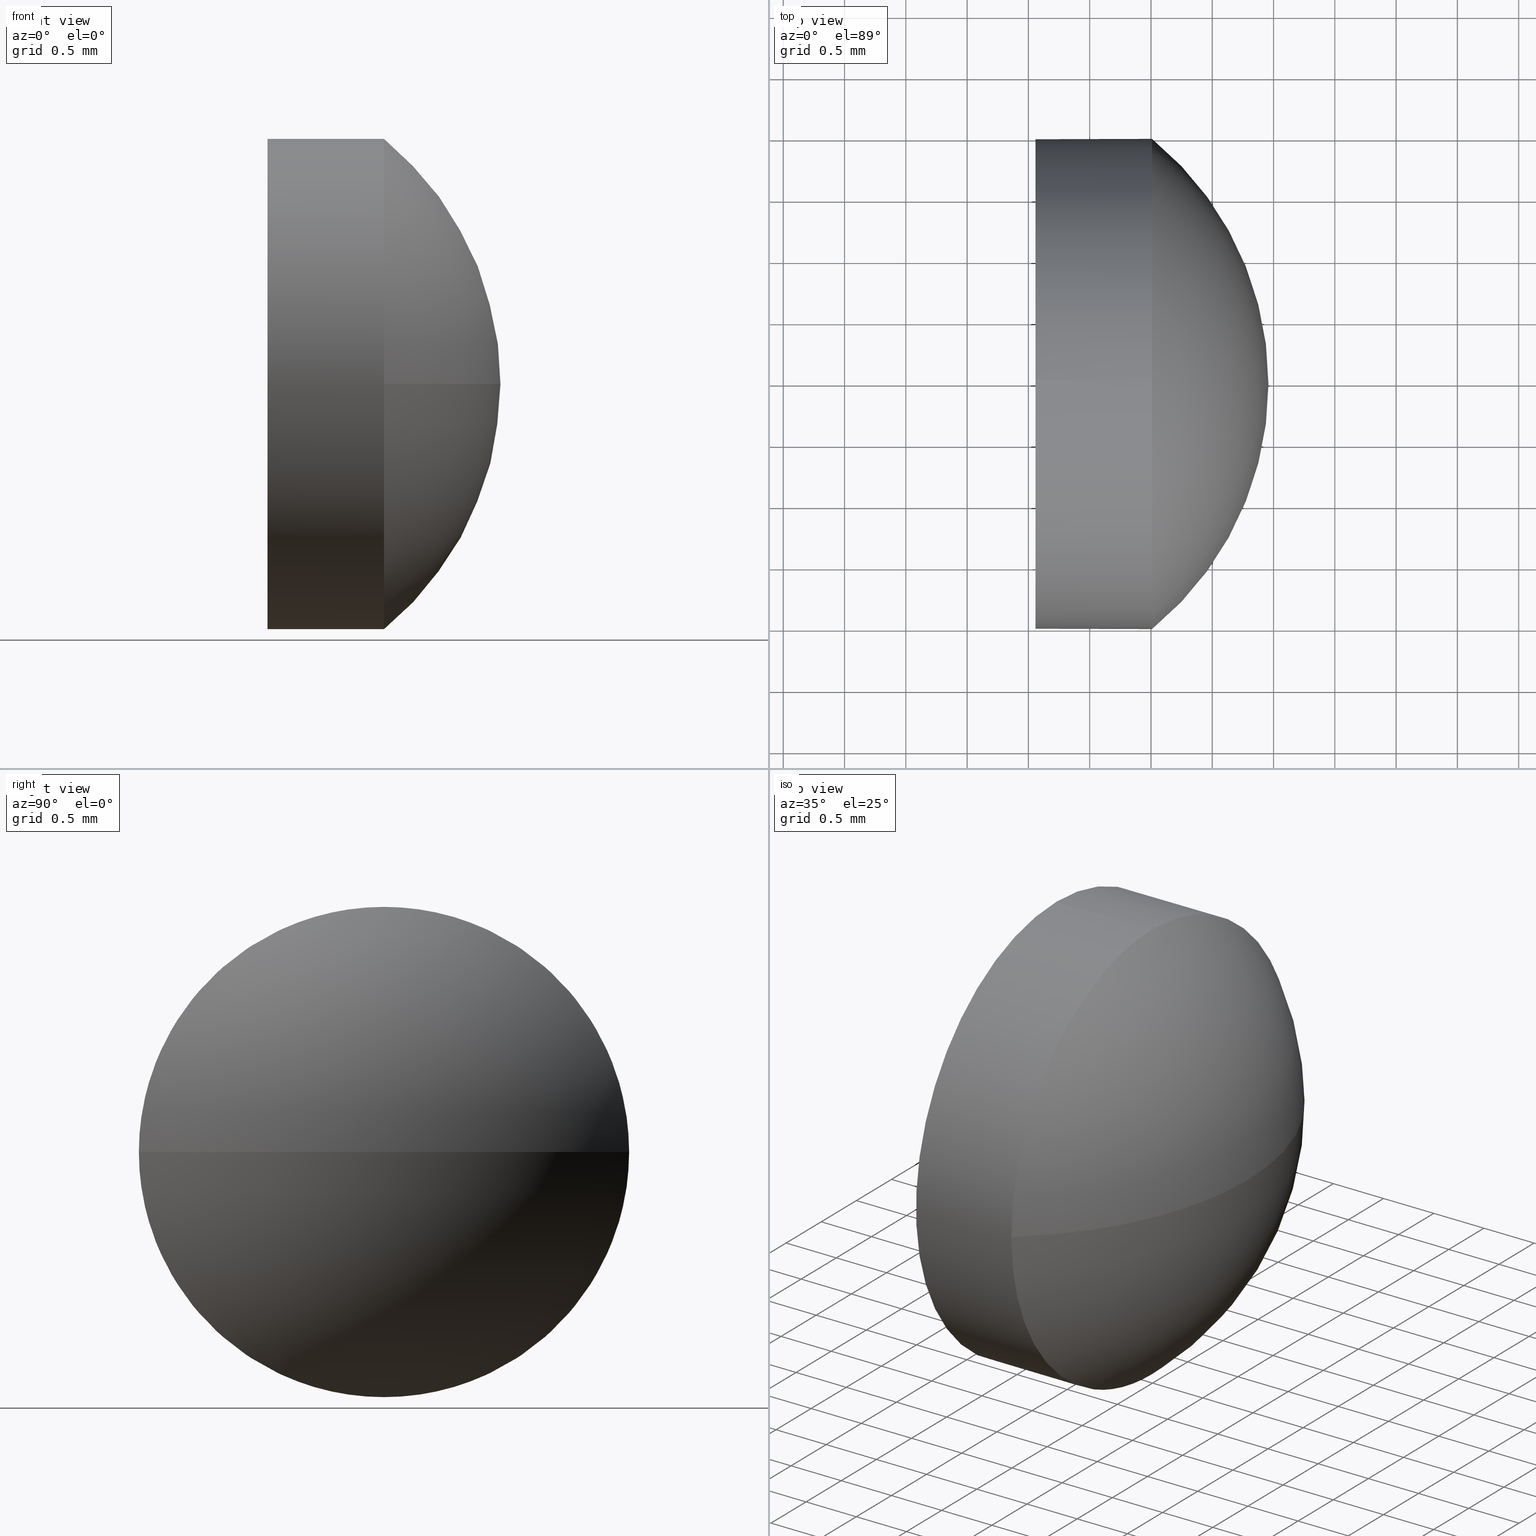
[diagram: canonical four-view strip — front | top / right | iso, engineering-drawing reading convention]
A machine part, canonical four-view strip (front | top / right | iso — engineering-drawing reading convention). The complete STEP part file that produces these views, byte-faithful:
ISO-10303-21;
HEADER;
FILE_DESCRIPTION (( 'STEP AP214' ),
    '1' );
FILE_NAME ('100002.STEP',
    '2019-04-18T09:23:28',
    ( '' ),
    ( '' ),
    'SwSTEP 2.0',
    'SolidWorks 2016',
    '' );
FILE_SCHEMA (( 'AUTOMOTIVE_DESIGN' ));
ENDSEC;

DATA;
#1 = FACE_OUTER_BOUND ( 'NONE', #55, .T. ) ;
#2 = ORIENTED_EDGE ( 'NONE', *, *, #9, .F. ) ;
#3 = AXIS2_PLACEMENT_3D ( 'NONE', #100, #83, #138 ) ;
#4 = CARTESIAN_POINT ( 'NONE',  ( 423.4283672634038600, 105.4806161096724700, -2.000000000000008900 ) ) ;
#5 = CARTESIAN_POINT ( 'NONE',  ( 423.4283672634038600, 105.4806161096724700, 2.000000000000008900 ) ) ;
#6 = DIRECTION ( 'NONE',  ( -1.000000000000000000, -0.0000000000000000000, -0.0000000000000000000 ) ) ;
#7 = CIRCLE ( 'NONE', #147, 2.000000000000015500 ) ;
#8 = CARTESIAN_POINT ( 'NONE',  ( 423.4283672634038600, 105.4806161096724700, 0.0000000000000000000 ) ) ;
#9 = EDGE_CURVE ( 'NONE', #130, #85, #41, .T. ) ;
#10 = MANIFOLD_SOLID_BREP ( '��ת3', #111 ) ;
#11 = DIRECTION ( 'NONE',  ( 1.000000000000000000, 0.0000000000000000000, 0.0000000000000000000 ) ) ;
#12 = AXIS2_PLACEMENT_3D ( 'NONE', #118, #6, #134 ) ;
#13 = ORIENTED_EDGE ( 'NONE', *, *, #49, .T. ) ;
#14 = FACE_OUTER_BOUND ( 'NONE', #148, .T. ) ;
#15 = ADVANCED_FACE ( 'NONE', ( #117 ), #126, .F. ) ;
#16 = APPLICATION_PROTOCOL_DEFINITION ( 'draft international standard', 'automotive_design', 1998, #31 ) ;
#17 = ORIENTED_EDGE ( 'NONE', *, *, #183, .T. ) ;
#18 = MECHANICAL_DESIGN_GEOMETRIC_PRESENTATION_REPRESENTATION (  '', ( #112 ), #127 ) ;
#19 = DIRECTION ( 'NONE',  ( 0.0000000000000000000, 0.0000000000000000000, 1.000000000000000000 ) ) ;
#20 = STYLED_ITEM ( 'NONE', ( #58 ), #87 ) ;
#21 = ORIENTED_EDGE ( 'NONE', *, *, #183, .F. ) ;
#22 = DIRECTION ( 'NONE',  ( 0.0000000000000000000, 0.0000000000000000000, 1.000000000000000000 ) ) ;
#23 = CARTESIAN_POINT ( 'NONE',  ( 424.0583397017737200, 107.4806161096724700, 0.0000000000000000000 ) ) ;
#24 = VERTEX_POINT ( 'NONE', #68 ) ;
#25 = AXIS2_PLACEMENT_3D ( 'NONE', #8, #73, #99 ) ;
#26 = PRODUCT_DEFINITION_SHAPE ( 'NONE', 'NONE',  #52 ) ;
#27 = COLOUR_RGB ( '',1.000000000000000000, 1.000000000000000000, 1.000000000000000000 ) ;
#28 = ORIENTED_EDGE ( 'NONE', *, *, #143, .F. ) ;
#29 = PRESENTATION_LAYER_ASSIGNMENT (  '', '', ( #20 ) ) ;
#30 = PRODUCT_CONTEXT ( 'NONE', #31, 'mechanical' ) ;
#31 = APPLICATION_CONTEXT ( 'automotive_design' ) ;
#32 =( LENGTH_UNIT ( ) NAMED_UNIT ( * ) SI_UNIT ( .MILLI., .METRE. ) );
#33 = DIRECTION ( 'NONE',  ( -1.000000000000000000, -0.0000000000000000000, -0.0000000000000000000 ) ) ;
#34 = DIRECTION ( 'NONE',  ( 0.0000000000000000000, 1.224646799147353200E-016, -1.000000000000000000 ) ) ;
#35 = COLOUR_RGB ( '',1.000000000000000000, 1.000000000000000000, 1.000000000000000000 ) ;
#36 = LINE ( 'NONE', #5, #170 ) ;
#37 = FILL_AREA_STYLE ('',( #144 ) ) ;
#38 = CARTESIAN_POINT ( 'NONE',  ( 424.0583397017737200, 105.4806161096724700, 0.0000000000000000000 ) ) ;
#39 = MECHANICAL_DESIGN_GEOMETRIC_PRESENTATION_REPRESENTATION (  '', ( #20 ), #82 ) ;
#40 = SPHERICAL_SURFACE ( 'NONE', #108, 2.580263128508496700 ) ;
#41 = CIRCLE ( 'NONE', #95, 2.000000000000015500 ) ;
#42 = CARTESIAN_POINT ( 'NONE',  ( 424.0583397017737200, 105.4806161096724700, 2.000000000000001800 ) ) ;
#43 = FILL_AREA_STYLE ('',( #154 ) ) ;
#44 = SURFACE_STYLE_USAGE ( .BOTH. , #62 ) ;
#45 = EDGE_CURVE ( 'NONE', #69, #164, #157, .T. ) ;
#46 = DIRECTION ( 'NONE',  ( -0.0000000000000000000, 0.0000000000000000000, 1.000000000000000000 ) ) ;
#47 = FACE_OUTER_BOUND ( 'NONE', #77, .T. ) ;
#48 = DIRECTION ( 'NONE',  ( -1.000000000000000000, -0.0000000000000000000, -0.0000000000000000000 ) ) ;
#49 = EDGE_CURVE ( 'NONE', #164, #69, #51, .T. ) ;
#50 = ORIENTED_EDGE ( 'NONE', *, *, #143, .T. ) ;
#51 = CIRCLE ( 'NONE', #139, 2.000000000000001800 ) ;
#52 = PRODUCT_DEFINITION ( 'δ֪', '', #109, #171 ) ;
#53 = CARTESIAN_POINT ( 'NONE',  ( 424.0583397017737200, 105.4806161096724700, 0.0000000000000000000 ) ) ;
#54 = DIRECTION ( 'NONE',  ( -1.000000000000000000, -0.0000000000000000000, -0.0000000000000000000 ) ) ;
#55 = EDGE_LOOP ( 'NONE', ( #133, #17, #28, #115 ) ) ;
#56 = AXIS2_PLACEMENT_3D ( 'NONE', #155, #34, #61 ) ;
#57 = ADVANCED_FACE ( 'NONE', ( #78 ), #110, .T. ) ;
#58 = PRESENTATION_STYLE_ASSIGNMENT (( #44 ) ) ;
#59 = VERTEX_POINT ( 'NONE', #177 ) ;
#60 =( NAMED_UNIT ( * ) PLANE_ANGLE_UNIT ( ) SI_UNIT ( $, .RADIAN. ) );
#61 = DIRECTION ( 'NONE',  ( 0.0000000000000000000, 1.000000000000000000, 1.224646799147354200E-016 ) ) ;
#62 = SURFACE_SIDE_STYLE ('',( #92 ) ) ;
#63 = SHAPE_DEFINITION_REPRESENTATION ( #26, #87 ) ;
#64 = DIRECTION ( 'NONE',  ( -1.000000000000000000, -0.0000000000000000000, -0.0000000000000000000 ) ) ;
#65 =( GEOMETRIC_REPRESENTATION_CONTEXT ( 3 ) GLOBAL_UNCERTAINTY_ASSIGNED_CONTEXT ( ( #119 ) ) GLOBAL_UNIT_ASSIGNED_CONTEXT ( ( #32, #165, #137 ) ) REPRESENTATION_CONTEXT ( 'NONE', 'WORKASPACE' ) );
#66 = DIRECTION ( 'NONE',  ( -1.000000000000000000, -0.0000000000000000000, -0.0000000000000000000 ) ) ;
#67 = ORIENTED_EDGE ( 'NONE', *, *, #45, .F. ) ;
#68 = CARTESIAN_POINT ( 'NONE',  ( 425.0083397017737100, 107.4806161096724800, 0.0000000000000000000 ) ) ;
#69 = VERTEX_POINT ( 'NONE', #42 ) ;
#70 = ORIENTED_EDGE ( 'NONE', *, *, #101, .F. ) ;
#71 = DIRECTION ( 'NONE',  ( 0.0000000000000000000, 1.000000000000000000, 0.0000000000000000000 ) ) ;
#72 = ORIENTED_EDGE ( 'NONE', *, *, #101, .T. ) ;
#73 = DIRECTION ( 'NONE',  ( -1.000000000000000000, -0.0000000000000000000, -0.0000000000000000000 ) ) ;
#74 = ADVANCED_FACE ( 'NONE', ( #1 ), #40, .T. ) ;
#75 = CARTESIAN_POINT ( 'NONE',  ( 425.0083397017737100, 105.4806161096724700, 0.0000000000000000000 ) ) ;
#76 = DIRECTION ( 'NONE',  ( 1.000000000000000000, 0.0000000000000000000, 0.0000000000000000000 ) ) ;
#77 = EDGE_LOOP ( 'NONE', ( #169, #93, #88, #67, #70 ) ) ;
#78 = FACE_OUTER_BOUND ( 'NONE', #79, .T. ) ;
#79 = EDGE_LOOP ( 'NONE', ( #21, #106, #113, #2 ) ) ;
#80 =( NAMED_UNIT ( * ) PLANE_ANGLE_UNIT ( ) SI_UNIT ( $, .RADIAN. ) );
#81 = CYLINDRICAL_SURFACE ( 'NONE', #173, 2.000000000000008900 ) ;
#82 =( GEOMETRIC_REPRESENTATION_CONTEXT ( 3 ) GLOBAL_UNCERTAINTY_ASSIGNED_CONTEXT ( ( #186 ) ) GLOBAL_UNIT_ASSIGNED_CONTEXT ( ( #151, #60, #116 ) ) REPRESENTATION_CONTEXT ( 'NONE', 'WORKASPACE' ) );
#83 = DIRECTION ( 'NONE',  ( -1.000000000000000000, -0.0000000000000000000, -0.0000000000000000000 ) ) ;
#84 = AXIS2_PLACEMENT_3D ( 'NONE', #53, #54, #160 ) ;
#85 = VERTEX_POINT ( 'NONE', #129 ) ;
#86 = CARTESIAN_POINT ( 'NONE',  ( 423.4283672634038600, 105.4806161096724700, 0.0000000000000000000 ) ) ;
#87 = ADVANCED_BREP_SHAPE_REPRESENTATION ( '100002', ( #10, #103 ), #65 ) ;
#88 = ORIENTED_EDGE ( 'NONE', *, *, #162, .T. ) ;
#89 = CIRCLE ( 'NONE', #56, 2.580263128508494900 ) ;
#90 = CARTESIAN_POINT ( 'NONE',  ( 425.0083397017737100, 105.4806161096724700, 0.0000000000000000000 ) ) ;
#91 = EDGE_CURVE ( 'NONE', #24, #141, #7, .T. ) ;
#92 = SURFACE_STYLE_FILL_AREA ( #43 ) ;
#93 = ORIENTED_EDGE ( 'NONE', *, *, #91, .T. ) ;
#94 = DIRECTION ( 'NONE',  ( -0.0000000000000000000, 0.0000000000000000000, -1.000000000000000000 ) ) ;
#95 = AXIS2_PLACEMENT_3D ( 'NONE', #90, #104, #22 ) ;
#96 = CARTESIAN_POINT ( 'NONE',  ( 423.3780765903894700, 105.4806161096724400, 0.0000000000000000000 ) ) ;
#97 = CARTESIAN_POINT ( 'NONE',  ( 0.0000000000000000000, 0.0000000000000000000, 0.0000000000000000000 ) ) ;
#98 = CARTESIAN_POINT ( 'NONE',  ( 425.0083397017737100, 105.4806161096724700, -2.000000000000015500 ) ) ;
#99 = DIRECTION ( 'NONE',  ( 0.0000000000000000000, 0.0000000000000000000, 1.000000000000000000 ) ) ;
#100 = CARTESIAN_POINT ( 'NONE',  ( 425.0083397017737100, 105.4806161096724700, 0.0000000000000000000 ) ) ;
#101 = EDGE_CURVE ( 'NONE', #85, #69, #36, .T. ) ;
#102 = APPLICATION_PROTOCOL_DEFINITION ( 'draft international standard', 'automotive_design', 1998, #140 ) ;
#103 = AXIS2_PLACEMENT_3D ( 'NONE', #97, #167, #179 ) ;
#104 = DIRECTION ( 'NONE',  ( -1.000000000000000000, -0.0000000000000000000, -0.0000000000000000000 ) ) ;
#105 = ORIENTED_EDGE ( 'NONE', *, *, #45, .T. ) ;
#106 = ORIENTED_EDGE ( 'NONE', *, *, #181, .T. ) ;
#107 = DIRECTION ( 'NONE',  ( 0.0000000000000000000, 0.0000000000000000000, -1.000000000000000000 ) ) ;
#108 = AXIS2_PLACEMENT_3D ( 'NONE', #96, #94, #71 ) ;
#109 = PRODUCT_DEFINITION_FORMATION_WITH_SPECIFIED_SOURCE ( '�κ�', '', #142, .NOT_KNOWN. ) ;
#110 = SPHERICAL_SURFACE ( 'NONE', #168, 2.580263128508496700 ) ;
#111 = CLOSED_SHELL ( 'NONE', ( #74, #150, #136, #15, #57 ) ) ;
#112 = STYLED_ITEM ( 'NONE', ( #149 ), #10 ) ;
#113 = ORIENTED_EDGE ( 'NONE', *, *, #152, .F. ) ;
#114 = CARTESIAN_POINT ( 'NONE',  ( 425.0083397017737100, 103.4806161096724300, -2.449293598294728600E-016 ) ) ;
#115 = ORIENTED_EDGE ( 'NONE', *, *, #91, .F. ) ;
#116 =( NAMED_UNIT ( * ) SI_UNIT ( $, .STERADIAN. ) SOLID_ANGLE_UNIT ( ) );
#117 = FACE_OUTER_BOUND ( 'NONE', #178, .T. ) ;
#118 = CARTESIAN_POINT ( 'NONE',  ( 425.0083397017737100, 105.4806161096724700, 0.0000000000000000000 ) ) ;
#119 = UNCERTAINTY_MEASURE_WITH_UNIT (LENGTH_MEASURE( 1.000000000000000100E-005 ), #32, 'distance_accuracy_value', 'NONE');
#120 = CIRCLE ( 'NONE', #176, 2.580263128508508700 ) ;
#121 = CARTESIAN_POINT ( 'NONE',  ( 424.0583397017737200, 105.4806161096724700, -2.000000000000001800 ) ) ;
#122 = CARTESIAN_POINT ( 'NONE',  ( 423.3780765903894700, 105.4806161096724400, 0.0000000000000000000 ) ) ;
#123 = AXIS2_PLACEMENT_3D ( 'NONE', #23, #11, #107 ) ;
#124 =( LENGTH_UNIT ( ) NAMED_UNIT ( * ) SI_UNIT ( .MILLI., .METRE. ) );
#125 = LINE ( 'NONE', #4, #163 ) ;
#126 = PLANE ( 'NONE',  #123 ) ;
#127 =( GEOMETRIC_REPRESENTATION_CONTEXT ( 3 ) GLOBAL_UNCERTAINTY_ASSIGNED_CONTEXT ( ( #180 ) ) GLOBAL_UNIT_ASSIGNED_CONTEXT ( ( #124, #80, #172 ) ) REPRESENTATION_CONTEXT ( 'NONE', 'WORKASPACE' ) );
#128 = CARTESIAN_POINT ( 'NONE',  ( 423.3780765903894700, 105.4806161096724400, 0.0000000000000000000 ) ) ;
#129 = CARTESIAN_POINT ( 'NONE',  ( 425.0083397017737100, 105.4806161096724700, 2.000000000000015500 ) ) ;
#130 = VERTEX_POINT ( 'NONE', #114 ) ;
#131 = PRODUCT_RELATED_PRODUCT_CATEGORY ( 'part', '', ( #142 ) ) ;
#132 = DIRECTION ( 'NONE',  ( 0.0000000000000000000, 1.000000000000000000, 0.0000000000000000000 ) ) ;
#133 = ORIENTED_EDGE ( 'NONE', *, *, #181, .F. ) ;
#134 = DIRECTION ( 'NONE',  ( 0.0000000000000000000, 0.0000000000000000000, 1.000000000000000000 ) ) ;
#135 = CIRCLE ( 'NONE', #3, 2.000000000000015500 ) ;
#136 = ADVANCED_FACE ( 'NONE', ( #14 ), #81, .T. ) ;
#137 =( NAMED_UNIT ( * ) SI_UNIT ( $, .STERADIAN. ) SOLID_ANGLE_UNIT ( ) );
#138 = DIRECTION ( 'NONE',  ( 0.0000000000000000000, 0.0000000000000000000, 1.000000000000000000 ) ) ;
#139 = AXIS2_PLACEMENT_3D ( 'NONE', #38, #66, #161 ) ;
#140 = APPLICATION_CONTEXT ( 'automotive_design' ) ;
#141 = VERTEX_POINT ( 'NONE', #98 ) ;
#142 = PRODUCT ( '100002', '100002', '', ( #30 ) ) ;
#143 = EDGE_CURVE ( 'NONE', #141, #130, #135, .T. ) ;
#144 = FILL_AREA_STYLE_COLOUR ( '', #35 ) ;
#145 = SURFACE_SIDE_STYLE ('',( #185 ) ) ;
#146 = DIRECTION ( 'NONE',  ( -0.0000000000000000000, 0.0000000000000000000, -1.000000000000000000 ) ) ;
#147 = AXIS2_PLACEMENT_3D ( 'NONE', #75, #182, #19 ) ;
#148 = EDGE_LOOP ( 'NONE', ( #184, #50, #174, #72, #156 ) ) ;
#149 = PRESENTATION_STYLE_ASSIGNMENT (( #158 ) ) ;
#150 = ADVANCED_FACE ( 'NONE', ( #47 ), #166, .T. ) ;
#151 =( LENGTH_UNIT ( ) NAMED_UNIT ( * ) SI_UNIT ( .MILLI., .METRE. ) );
#152 = EDGE_CURVE ( 'NONE', #85, #24, #175, .T. ) ;
#153 = DIRECTION ( 'NONE',  ( 0.0000000000000000000, 0.0000000000000000000, 1.000000000000000000 ) ) ;
#154 = FILL_AREA_STYLE_COLOUR ( '', #27 ) ;
#155 = CARTESIAN_POINT ( 'NONE',  ( 423.3780765903894700, 105.4806161096724400, 0.0000000000000000000 ) ) ;
#156 = ORIENTED_EDGE ( 'NONE', *, *, #49, .F. ) ;
#157 = CIRCLE ( 'NONE', #84, 2.000000000000001800 ) ;
#158 = SURFACE_STYLE_USAGE ( .BOTH. , #145 ) ;
#159 = PRESENTATION_LAYER_ASSIGNMENT (  '', '', ( #112 ) ) ;
#160 = DIRECTION ( 'NONE',  ( 0.0000000000000000000, 0.0000000000000000000, 1.000000000000000000 ) ) ;
#161 = DIRECTION ( 'NONE',  ( 0.0000000000000000000, 0.0000000000000000000, 1.000000000000000000 ) ) ;
#162 = EDGE_CURVE ( 'NONE', #141, #164, #125, .T. ) ;
#163 = VECTOR ( 'NONE', #33, 1000.000000000000000 ) ;
#164 = VERTEX_POINT ( 'NONE', #121 ) ;
#165 =( NAMED_UNIT ( * ) PLANE_ANGLE_UNIT ( ) SI_UNIT ( $, .RADIAN. ) );
#166 = CYLINDRICAL_SURFACE ( 'NONE', #25, 2.000000000000008900 ) ;
#167 = DIRECTION ( 'NONE',  ( 0.0000000000000000000, 0.0000000000000000000, 1.000000000000000000 ) ) ;
#168 = AXIS2_PLACEMENT_3D ( 'NONE', #128, #146, #132 ) ;
#169 = ORIENTED_EDGE ( 'NONE', *, *, #152, .T. ) ;
#170 = VECTOR ( 'NONE', #48, 1000.000000000000000 ) ;
#171 = PRODUCT_DEFINITION_CONTEXT ( 'detailed design', #140, 'design' ) ;
#172 =( NAMED_UNIT ( * ) SI_UNIT ( $, .STERADIAN. ) SOLID_ANGLE_UNIT ( ) );
#173 = AXIS2_PLACEMENT_3D ( 'NONE', #86, #64, #153 ) ;
#174 = ORIENTED_EDGE ( 'NONE', *, *, #9, .T. ) ;
#175 = CIRCLE ( 'NONE', #12, 2.000000000000015500 ) ;
#176 = AXIS2_PLACEMENT_3D ( 'NONE', #122, #46, #76 ) ;
#177 = CARTESIAN_POINT ( 'NONE',  ( 425.9583397188979500, 105.4806161096724400, 0.0000000000000000000 ) ) ;
#178 = EDGE_LOOP ( 'NONE', ( #105, #13 ) ) ;
#179 = DIRECTION ( 'NONE',  ( 1.000000000000000000, 0.0000000000000000000, 0.0000000000000000000 ) ) ;
#180 = UNCERTAINTY_MEASURE_WITH_UNIT (LENGTH_MEASURE( 1.000000000000000100E-005 ), #124, 'distance_accuracy_value', 'NONE');
#181 = EDGE_CURVE ( 'NONE', #59, #24, #120, .T. ) ;
#182 = DIRECTION ( 'NONE',  ( -1.000000000000000000, -0.0000000000000000000, -0.0000000000000000000 ) ) ;
#183 = EDGE_CURVE ( 'NONE', #59, #130, #89, .T. ) ;
#184 = ORIENTED_EDGE ( 'NONE', *, *, #162, .F. ) ;
#185 = SURFACE_STYLE_FILL_AREA ( #37 ) ;
#186 = UNCERTAINTY_MEASURE_WITH_UNIT (LENGTH_MEASURE( 1.000000000000000100E-005 ), #151, 'distance_accuracy_value', 'NONE');
ENDSEC;
END-ISO-10303-21;
